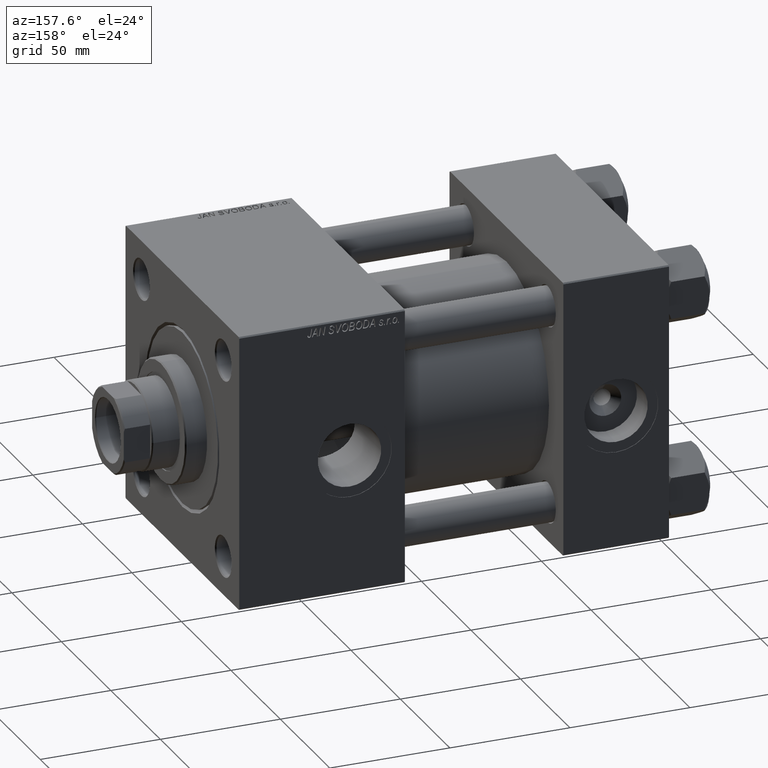
[diagram: clean part render]
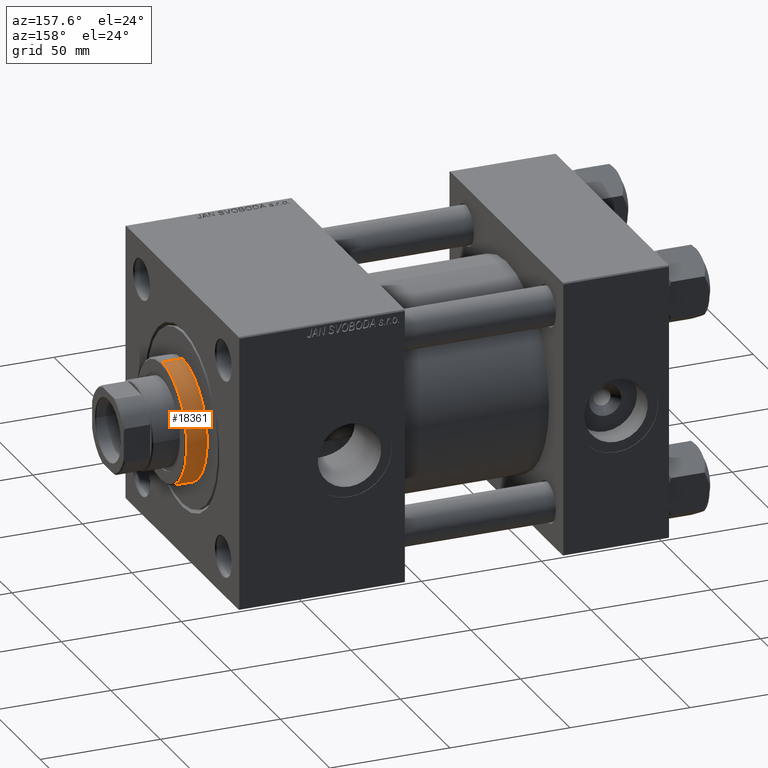
[diagram: same view with one face highlighted and labeled with its STEP entity id]
A machine part, auxiliary view. The second image highlights one B-rep face of the part: STEP entity #18361.
In plain terms, the highlighted cylindrical surface (partial cylindrical patch) has radius 25 mm, axis along (-1, -0, -0).
Its self-contained STEP definition (entity closure, byte-faithful):
#30 = DIRECTION ( 'NONE',  ( -0.000000000000000000, -0.000000000000000000, -1.000000000000000000 ) ) ;
#1729 = CIRCLE ( 'NONE', #3344, 25.00000000000000000 ) ;
#2913 = EDGE_CURVE ( 'NONE', #42454, #45305, #1729, .T. ) ;
#3344 = AXIS2_PLACEMENT_3D ( 'NONE', #5119, #4870, #20749 ) ;
#3868 = LINE ( 'NONE', #43306, #31813 ) ;
#3946 = CIRCLE ( 'NONE', #10524, 25.00000000000000000 ) ;
#4020 = CARTESIAN_POINT ( 'NONE',  ( -25.00000000000000000, 0.000000000000000000, 37.19999999999999574 ) ) ;
#4870 = DIRECTION ( 'NONE',  ( 0.000000000000000000, 0.000000000000000000, -1.000000000000000000 ) ) ;
#5119 = CARTESIAN_POINT ( 'NONE',  ( 0.000000000000000000, 0.000000000000000000, 37.19999999999999574 ) ) ;
#5860 = ORIENTED_EDGE ( 'NONE', *, *, #43339, .T. ) ;
#7954 = ORIENTED_EDGE ( 'NONE', *, *, #48060, .F. ) ;
#10524 = AXIS2_PLACEMENT_3D ( 'NONE', #34786, #26848, #15577 ) ;
#13018 = FACE_OUTER_BOUND ( 'NONE', #32320, .T. ) ;
#15049 = DIRECTION ( 'NONE',  ( -0.000000000000000000, -0.000000000000000000, -1.000000000000000000 ) ) ;
#15577 = DIRECTION ( 'NONE',  ( 1.000000000000000000, 0.000000000000000000, 0.000000000000000000 ) ) ;
#17963 = ORIENTED_EDGE ( 'NONE', *, *, #2913, .T. ) ;
#18361 = ADVANCED_FACE ( 'NONE', ( #13018 ), #28647, .T. ) ;
#18373 = CARTESIAN_POINT ( 'NONE',  ( 0.000000000000000000, 0.000000000000000000, 37.69999999999999574 ) ) ;
#20749 = DIRECTION ( 'NONE',  ( 1.000000000000000000, 0.000000000000000000, 0.000000000000000000 ) ) ;
#21714 = DIRECTION ( 'NONE',  ( -0.000000000000000000, -0.000000000000000000, -1.000000000000000000 ) ) ;
#22477 = DIRECTION ( 'NONE',  ( -1.000000000000000000, 0.000000000000000000, 0.000000000000000000 ) ) ;
#25075 = VERTEX_POINT ( 'NONE', #41944 ) ;
#25128 = VECTOR ( 'NONE', #21714, 1000.000000000000000 ) ;
#26848 = DIRECTION ( 'NONE',  ( 0.000000000000000000, 0.000000000000000000, 1.000000000000000000 ) ) ;
#27046 = EDGE_CURVE ( 'NONE', #25075, #40934, #3946, .T. ) ;
#28647 = CYLINDRICAL_SURFACE ( 'NONE', #31482, 25.00000000000000000 ) ;
#29415 = ORIENTED_EDGE ( 'NONE', *, *, #27046, .T. ) ;
#31482 = AXIS2_PLACEMENT_3D ( 'NONE', #18373, #15049, #22477 ) ;
#31593 = CARTESIAN_POINT ( 'NONE',  ( 25.00000000000000000, 3.061616997868383043E-15, 37.19999999999999574 ) ) ;
#31813 = VECTOR ( 'NONE', #30, 1000.000000000000000 ) ;
#32320 = EDGE_LOOP ( 'NONE', ( #17963, #5860, #29415, #7954 ) ) ;
#34786 = CARTESIAN_POINT ( 'NONE',  ( 0.000000000000000000, 0.000000000000000000, 28.69999999999999929 ) ) ;
#40931 = LINE ( 'NONE', #49619, #25128 ) ;
#40934 = VERTEX_POINT ( 'NONE', #46542 ) ;
#41944 = CARTESIAN_POINT ( 'NONE',  ( 25.00000000000000000, 3.061616997868383043E-15, 28.69999999999999929 ) ) ;
#42454 = VERTEX_POINT ( 'NONE', #4020 ) ;
#43306 = CARTESIAN_POINT ( 'NONE',  ( -25.00000000000000000, 0.000000000000000000, 37.69999999999999574 ) ) ;
#43339 = EDGE_CURVE ( 'NONE', #45305, #25075, #40931, .T. ) ;
#45305 = VERTEX_POINT ( 'NONE', #31593 ) ;
#46542 = CARTESIAN_POINT ( 'NONE',  ( -25.00000000000000000, 0.000000000000000000, 28.69999999999999929 ) ) ;
#48060 = EDGE_CURVE ( 'NONE', #42454, #40934, #3868, .T. ) ;
#49619 = CARTESIAN_POINT ( 'NONE',  ( 25.00000000000000000, 3.061616997868383043E-15, 37.69999999999999574 ) ) ;